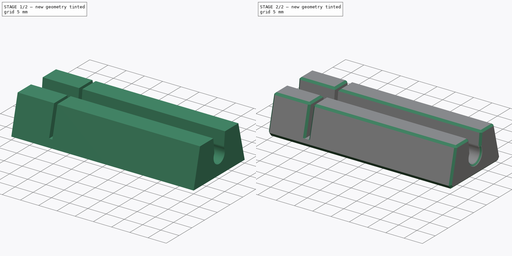
[diagram: build sequence overview — one tinted view per stage of 2, left to right]
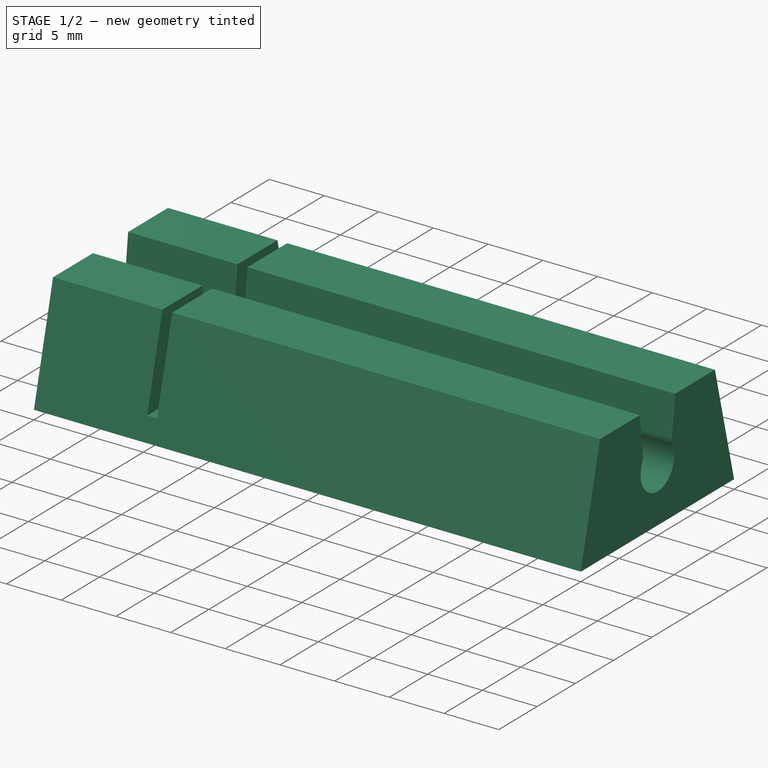
[diagram: stage 1 of 2 — iso view after this stage's code; geometry added in this stage tinted green]
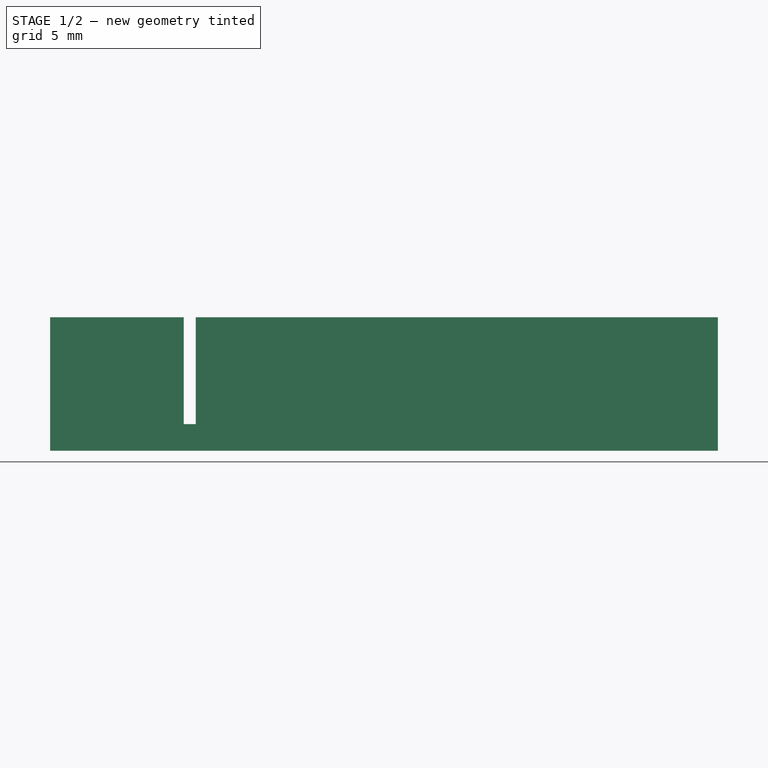
[diagram: stage 1 of 2 — front view after this stage's code; geometry added in this stage tinted green]
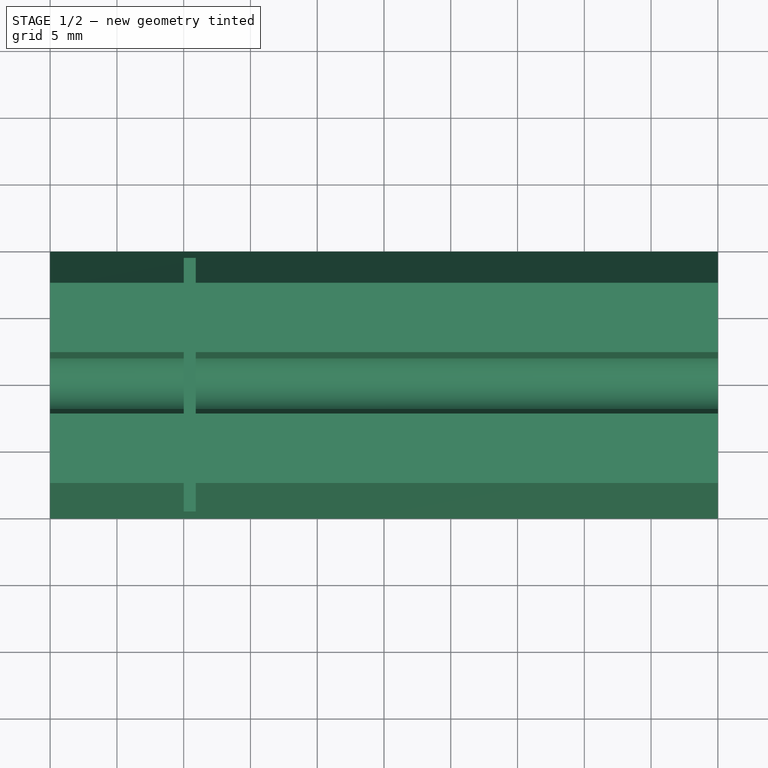
[diagram: stage 1 of 2 — top view after this stage's code; geometry added in this stage tinted green]
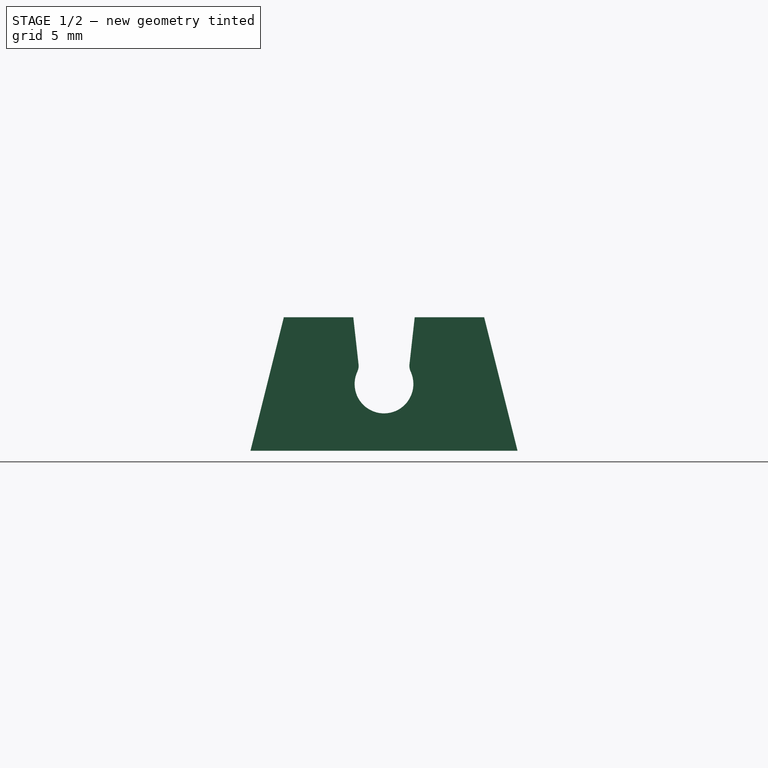
[diagram: stage 1 of 2 — right view after this stage's code; geometry added in this stage tinted green]
FCSTD DOCUMENT  (FreeCAD 0.20R29108 +2 (Git))
Label: Teflonlade
License: All rights reserved
LicenseURL: http://en.wikipedia.org/wiki/All_rights_reserved
objects: Sketcher::SketchObject×2, PartDesign::Chamfer×2, PartDesign::Pad×1, PartDesign::Pocket×1, PartDesign::Body×1
note: 11 computed .brp shape members not serialized (recipe doc carries the construction recipe); baked Part::Feature solids carry a one-line shape summary decoded from their .brp

FEATURE [Sketcher::SketchObject] Sketch
  FullyConstrained = true
  MapMode = 5
  Placement = pos=(0,0,0) rot=(0.57735,0.57735,0.57735;2.0944rad)
  Support = -> [YZ_Plane]
  sketch-geometry (13):
    g0: LineSegment StartX=-10 StartY=-3e-16 StartZ=0 EndX=10 EndY=0 EndZ=0
    g1: LineSegment StartX=10 StartY=0 StartZ=0 EndX=7.5 EndY=10 EndZ=0
    g2: LineSegment StartX=7.5 StartY=10 StartZ=0 EndX=2.3 EndY=10 EndZ=0
    g3: LineSegment StartX=2.3 StartY=10 StartZ=0 EndX=1.90614 EndY=6.46346 EndZ=0
    g4: ArcOfCircle CenterX=0 CenterY=5 CenterZ=0 NormalX=0 NormalY=0 NormalZ=1 AngleXU=0 Radius=2.2 StartAngle=2.70512 EndAngle=6.71965
    g5: LineSegment StartX=-1.90614 StartY=6.46346 StartZ=0 EndX=-2.3 EndY=10 EndZ=0
    g6: LineSegment StartX=-2.3 StartY=10 StartZ=0 EndX=-7.5 EndY=10 EndZ=0
    g7: LineSegment StartX=-7.5 StartY=10 StartZ=0 EndX=-10 EndY=-3e-16 EndZ=0
    g8: ArcOfCircle CenterX=-2.9 CenterY=6.35277 CenterZ=0 NormalX=0 NormalY=0 NormalZ=1 AngleXU=0 Radius=1 StartAngle=5.84672 EndAngle=6.3941
    g9: ArcOfCircle CenterX=2.9 CenterY=6.35277 CenterZ=0 NormalX=0 NormalY=0 NormalZ=1 AngleXU=0 Radius=1 StartAngle=3.03068 EndAngle=3.57806
    g10: LineSegment StartX=-2.9 StartY=6.35277 StartZ=0 EndX=2.9 EndY=6.35277 EndZ=0
    g11: GeomPoint X=-1.9 Y=6.35277 Z=0
    g12: GeomPoint X=1.9 Y=6.35277 Z=0
  constraints (33):
    c: PointOnObject(g0,g-1)
    c: Coincident(g0,g1)
    c: Coincident(g1,g2)
    c: Horizontal(g2)
    c: Coincident(g2,g3)
    c: Coincident(g5,g6)
    c: Horizontal(g6)
    c: Coincident(g6,g7)
    c: Coincident(g7,g0)
    c: Radius(g4) = 2.2
    c: PointOnObject(g4,g-2)
    c: DistanceY(g-1,g4) = 5
    c: Symmetric(g5,g2,g-2)
    c: DistanceY(g-1,g1) = 10
    c: Tangent(g8,g4) = 1.5708
    c: Tangent(g8,g5) = -1.5708
    c: Tangent(g9,g3) = -1.5708
    c: Tangent(g9,g4) = 1.5708
    c: Equal(g8,g9)
    c: Horizontal(g8,g9)
    c: DistanceX(g5,g2) = 4.6
    c: Coincident(g10,g8)
    c: Coincident(g10,g9)
    c: PointOnObject(g11,g8)
    c: PointOnObject(g12,g9)
    c: PointOnObject(g11,g10)
    c: PointOnObject(g12,g10)
    c: DistanceX(g11,g12) = 3.8
    c: DistanceX(g0,g0) = 20
    c: DistanceX(g6,g1) = 15
    c: Equal(g6,g2)
    c: Symmetric(g0,g0,g-2)
    c: Radius(g8) = 1
FEATURE [PartDesign::Pad] Pad
  Direction = (1,-2e-16,3e-16)
  Length = 50
  Length2 = 10
  Placement = pos=(0,0,0) rot=(0.57735,0.57735,0.57735;2.0944rad)
  Profile = -> Sketch
  ReferenceAxis = -> Sketch [N_Axis]
  Refine = true
  Type = 0
FEATURE [Sketcher::SketchObject] Sketch001
  FullyConstrained = true
  MapMode = 5
  Placement = pos=(0,0,0) rot=(1,0,0;1.5708rad)
  Support = -> [XZ_Plane]
  sketch-geometry (4):
    g0: LineSegment StartX=10 StartY=12 StartZ=0 EndX=10.9 EndY=12 EndZ=0
    g1: LineSegment StartX=10.9 StartY=12 StartZ=0 EndX=10.9 EndY=2 EndZ=0
    g2: LineSegment StartX=10.9 StartY=2 StartZ=0 EndX=10 EndY=2 EndZ=0
    g3: LineSegment StartX=10 StartY=2 StartZ=0 EndX=10 EndY=12 EndZ=0
  constraints (12):
    c: Coincident(g0,g1)
    c: Coincident(g1,g2)
    c: Coincident(g2,g3)
    c: Coincident(g3,g0)
    c: Horizontal(g0)
    c: Horizontal(g2)
    c: Vertical(g1)
    c: Vertical(g3)
    c: DistanceX(g2,g2) = 0.9
    c: DistanceX(g-1,g2) = 10
    c: DistanceY(g1,g1) = 10
    c: DistanceY(g-1,g2) = 2
FEATURE [PartDesign::Pocket] Pocket
  BaseFeature = -> Pad
  Direction = (0,1,2e-16)
  Inverse = false
  Length = 5
  Length2 = 5
  Midplane = true
  Placement = pos=(0,0,0) rot=(0.57735,0.57735,0.57735;2.0944rad)
  Profile = -> Sketch001
  ReferenceAxis = -> Sketch001 [N_Axis]
  Refine = true
  Type = 1
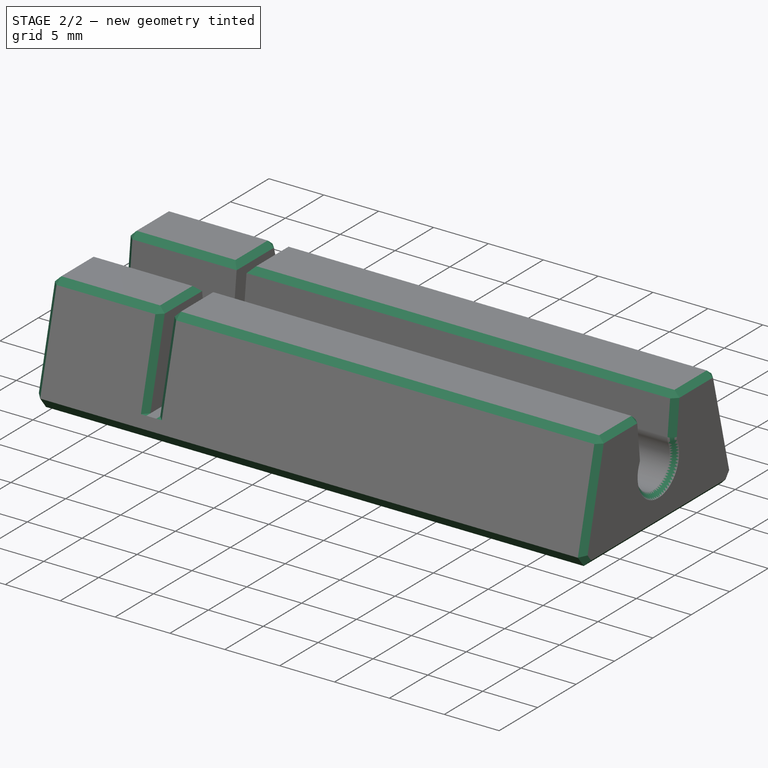
[diagram: stage 2 of 2 — iso view after this stage's code; geometry added in this stage tinted green]
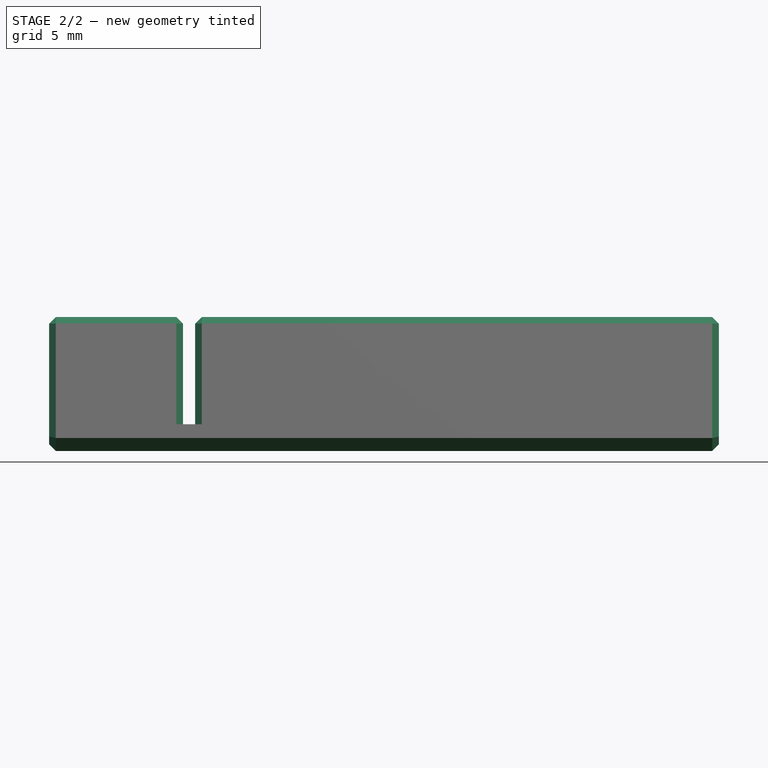
[diagram: stage 2 of 2 — front view after this stage's code; geometry added in this stage tinted green]
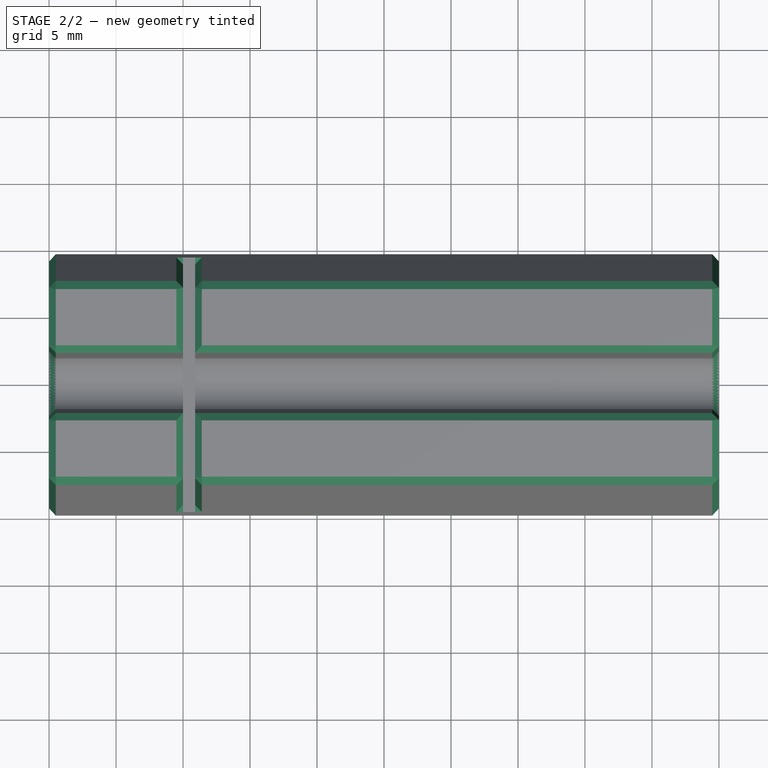
[diagram: stage 2 of 2 — top view after this stage's code; geometry added in this stage tinted green]
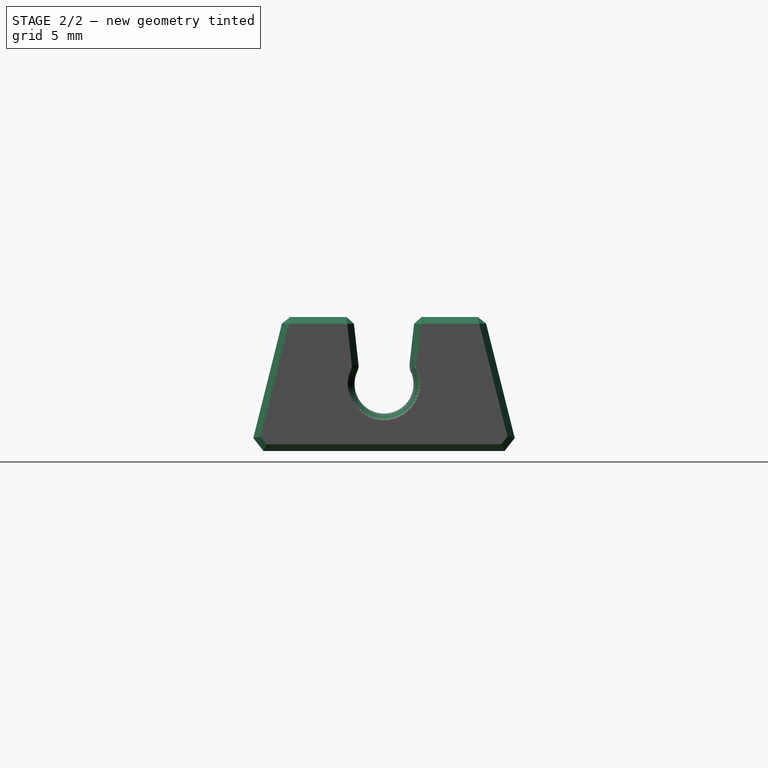
[diagram: stage 2 of 2 — right view after this stage's code; geometry added in this stage tinted green]
FEATURE [PartDesign::Chamfer] Chamfer
  Angle = 45
  Base = -> Pocket [Edge31,Edge26]
  BaseFeature = -> Pocket
  ChamferType = 0
  FlipDirection = false
  Placement = pos=(0,0,0) rot=(0.57735,0.57735,0.57735;2.0944rad)
  Refine = true
  Size = 1
  Size2 = 1
  SupportTransform = false
  UseAllEdges = false
FEATURE [PartDesign::Chamfer] Chamfer001
  Angle = 45
  Base = -> Chamfer [Face14,Face1,Face4,Face11,Face19,Face16,Edge16,Edge34,Edge37,Edge19]
  BaseFeature = -> Chamfer
  ChamferType = 0
  FlipDirection = false
  Placement = pos=(0,0,0) rot=(0.57735,0.57735,0.57735;2.0944rad)
  Refine = true
  Size = 0.5
  Size2 = 1
  SupportTransform = false
  UseAllEdges = false
FEATURE [PartDesign::Body] Body
  Group = -> [Sketch,Pad,Sketch001,Pocket,Chamfer,Chamfer001]
  Origin = -> Origin
  Tip = -> Chamfer001
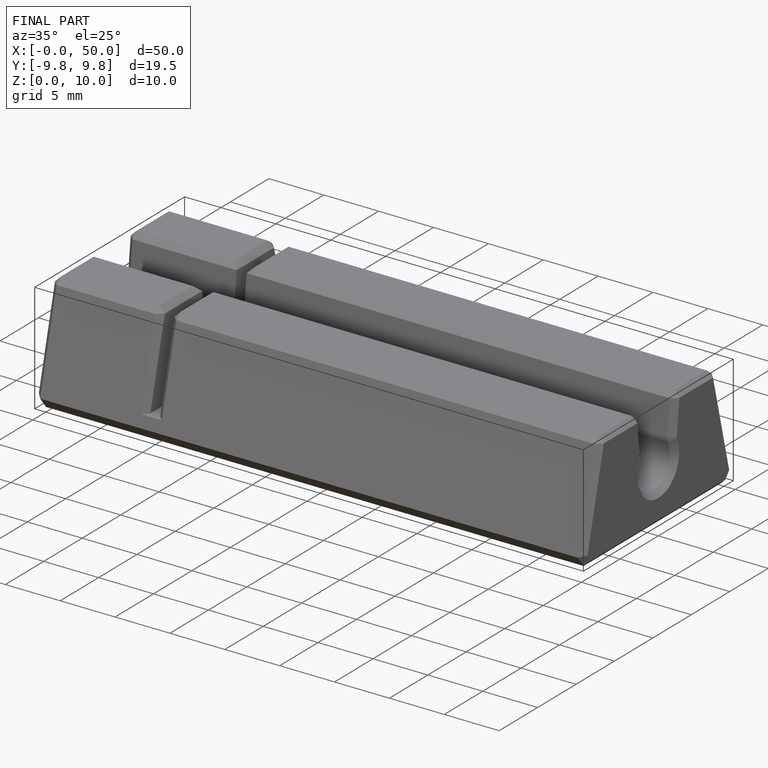
[diagram: finished part — iso view with bounding-box wireframe]
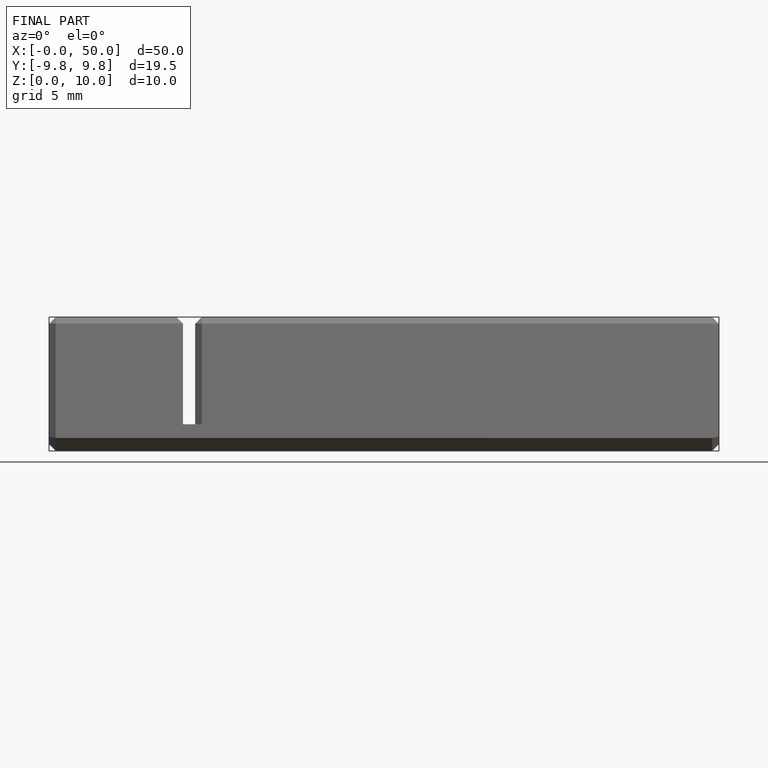
[diagram: finished part — front view with bounding-box wireframe]
